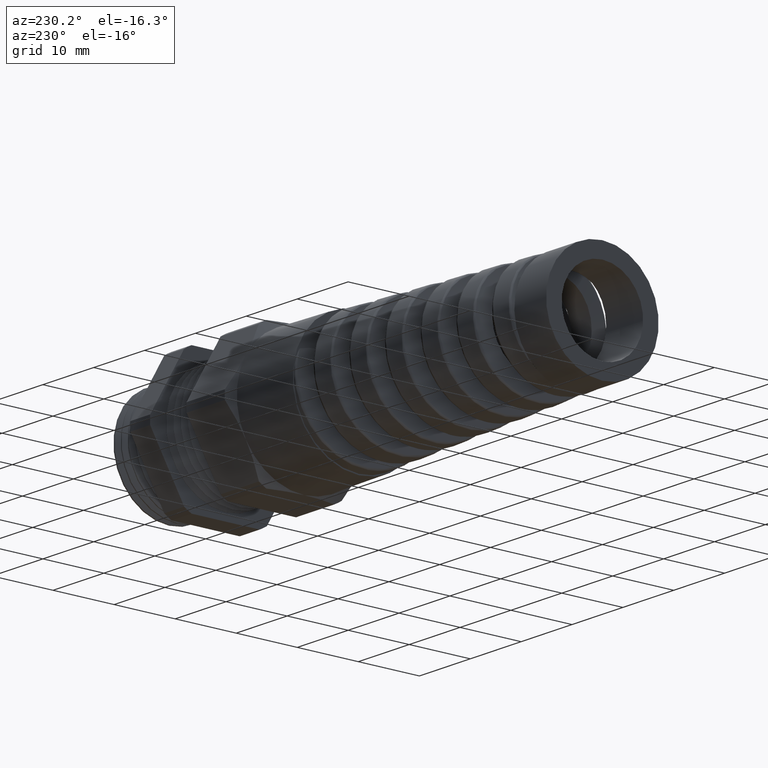
[diagram: clean part render]
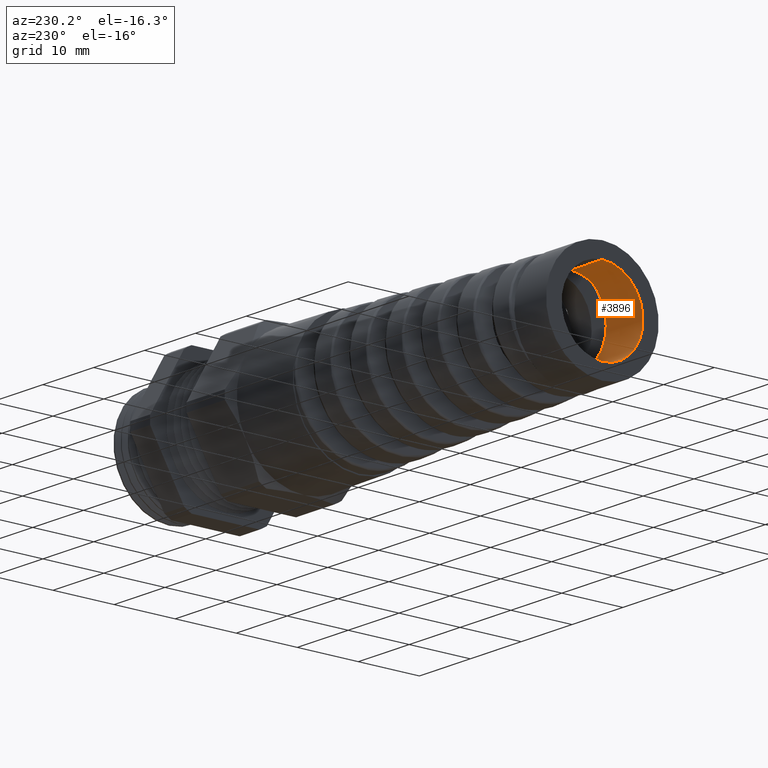
[diagram: same view with one face highlighted and labeled with its STEP entity id]
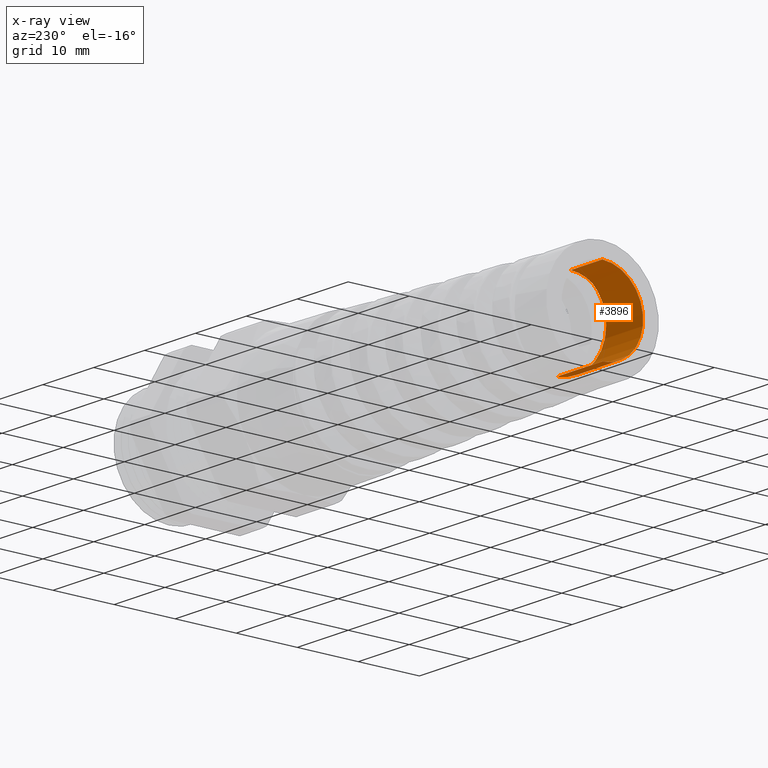
[diagram: x-ray of the same camera — body ghosted, the highlighted face saturated]
A machine part, auxiliary view. The second image highlights one B-rep face of the part: STEP entity #3896.
The next image is the same camera in x-ray: the body ghosted, the highlighted face saturated — about 0% of this face is hidden behind the body in this view.
In plain terms, the highlighted cylindrical surface (partial cylindrical patch) has radius 6.6796 mm, axis along (1, 0, 0).
Its self-contained STEP definition (entity closure, byte-faithful):
#3896 = ADVANCED_FACE ( 'NONE', ( #5457 ), #5452, .F. ) ;
#3897 = EDGE_LOOP ( 'NONE', ( #3898, #3905, #3970, #3975, #3980 ) ) ;
#3898 = ORIENTED_EDGE ( 'NONE', *, *, #3900, .T. ) ;
#3900 = EDGE_CURVE ( 'NONE', #3901, #3903, #5445, .T. ) ;
#3901 = VERTEX_POINT ( 'NONE', #5441 ) ;
#3903 = VERTEX_POINT ( 'NONE', #5440 ) ;
#3905 = ORIENTED_EDGE ( 'NONE', *, *, #3907, .T. ) ;
#3907 = EDGE_CURVE ( 'NONE', #3903, #3909, #5438, .T. ) ;
#3909 = VERTEX_POINT ( 'NONE', #5513 ) ;
#3935 = EDGE_CURVE ( 'NONE', #3901, #3978, #5523, .T. ) ;
#3970 = ORIENTED_EDGE ( 'NONE', *, *, #3973, .F. ) ;
#3973 = EDGE_CURVE ( 'NONE', #3974, #3909, #5641, .T. ) ;
#3974 = VERTEX_POINT ( 'NONE', #5636 ) ;
#3975 = ORIENTED_EDGE ( 'NONE', *, *, #3976, .F. ) ;
#3976 = EDGE_CURVE ( 'NONE', #3978, #3974, #5712, .T. ) ;
#3978 = VERTEX_POINT ( 'NONE', #5714 ) ;
#3980 = ORIENTED_EDGE ( 'NONE', *, *, #3935, .F. ) ;
#5436 = VECTOR ( 'NONE', #5514, 39.37007874015748100 ) ;
#5437 = CARTESIAN_POINT ( 'NONE',  ( 0.4924815508901369000, 3.220513540512179600E-017, 0.2629748873515552800 ) ) ;
#5438 = LINE ( 'NONE', #5437, #5436 ) ;
#5440 = CARTESIAN_POINT ( 'NONE',  ( -3.069999999999999800, 3.220513540512169800E-017, 0.2629748873515537200 ) ) ;
#5441 = CARTESIAN_POINT ( 'NONE',  ( -3.069999999999999800, 0.0000000000000000000, -0.2629748873515537200 ) ) ;
#5442 = DIRECTION ( 'NONE',  ( 0.0000000000000000000, 0.0000000000000000000, 1.000000000000000000 ) ) ;
#5443 = DIRECTION ( 'NONE',  ( -1.000000000000000000, 0.0000000000000000000, 0.0000000000000000000 ) ) ;
#5444 = AXIS2_PLACEMENT_3D ( 'NONE', #5451, #5443, #5442 ) ;
#5445 = CIRCLE ( 'NONE', #5444, 0.2629748873515537200 ) ;
#5447 = DIRECTION ( 'NONE',  ( 0.0000000000000000000, 0.0000000000000000000, -1.000000000000000000 ) ) ;
#5448 = DIRECTION ( 'NONE',  ( 1.000000000000000000, 0.0000000000000000000, 0.0000000000000000000 ) ) ;
#5449 = CARTESIAN_POINT ( 'NONE',  ( 0.4924815508901369000, 0.0000000000000000000, 0.0000000000000000000 ) ) ;
#5450 = AXIS2_PLACEMENT_3D ( 'NONE', #5449, #5448, #5447 ) ;
#5451 = CARTESIAN_POINT ( 'NONE',  ( -3.069999999999999800, 0.0000000000000000000, 0.0000000000000000000 ) ) ;
#5452 = CYLINDRICAL_SURFACE ( 'NONE', #5450, 0.2629748873515552800 ) ;
#5457 = FACE_OUTER_BOUND ( 'NONE', #3897, .T. ) ;
#5513 = CARTESIAN_POINT ( 'NONE',  ( -2.824400000000000200, 3.220513540512169800E-017, 0.2629748873515537200 ) ) ;
#5514 = DIRECTION ( 'NONE',  ( 1.000000000000000000, 0.0000000000000000000, 0.0000000000000000000 ) ) ;
#5520 = DIRECTION ( 'NONE',  ( 1.000000000000000000, 0.0000000000000000000, 0.0000000000000000000 ) ) ;
#5521 = VECTOR ( 'NONE', #5520, 39.37007874015748100 ) ;
#5522 = CARTESIAN_POINT ( 'NONE',  ( 0.4924815508901369000, 0.0000000000000000000, -0.2629748873515552800 ) ) ;
#5523 = LINE ( 'NONE', #5522, #5521 ) ;
#5636 = CARTESIAN_POINT ( 'NONE',  ( -2.824400000000000200, -0.1374920530584009300, 0.2241689691356683900 ) ) ;
#5637 = DIRECTION ( 'NONE',  ( 0.0000000000000000000, 0.0000000000000000000, 1.000000000000000000 ) ) ;
#5638 = DIRECTION ( 'NONE',  ( -1.000000000000000000, 0.0000000000000000000, 0.0000000000000000000 ) ) ;
#5639 = CARTESIAN_POINT ( 'NONE',  ( -2.824400000000000200, 0.0000000000000000000, 0.0000000000000000000 ) ) ;
#5640 = AXIS2_PLACEMENT_3D ( 'NONE', #5639, #5638, #5637 ) ;
#5641 = CIRCLE ( 'NONE', #5640, 0.2629748873515537200 ) ;
#5678 = CARTESIAN_POINT ( 'NONE',  ( -2.824400000000000200, -0.1374920530584009300, 0.2241689691356683900 ) ) ;
#5679 = CARTESIAN_POINT ( 'NONE',  ( -2.822089696417167100, -0.1497047909985277400, 0.2166783944173816800 ) ) ;
#5680 = CARTESIAN_POINT ( 'NONE',  ( -2.819775202997216300, -0.1613180804830380600, 0.2081679576898438100 ) ) ;
#5681 = CARTESIAN_POINT ( 'NONE',  ( -2.815203843638260900, -0.1827953653087309700, 0.1895871201351508600 ) ) ;
#5682 = CARTESIAN_POINT ( 'NONE',  ( -2.812939023507230500, -0.1926981783336656800, 0.1795085974050096600 ) ) ;
#5683 = CARTESIAN_POINT ( 'NONE',  ( -2.808389727583794600, -0.2108438251150436000, 0.1577998919083407100 ) ) ;
#5684 = CARTESIAN_POINT ( 'NONE',  ( -2.806084535048350800, -0.2191486654802313500, 0.1460551074298722700 ) ) ;
#5685 = CARTESIAN_POINT ( 'NONE',  ( -2.801505068138587400, -0.2336277664838753700, 0.1215577998973067500 ) ) ;
#5686 = CARTESIAN_POINT ( 'NONE',  ( -2.799235128430258300, -0.2398093385065509500, 0.1088441324153793500 ) ) ;
#5687 = CARTESIAN_POINT ( 'NONE',  ( -2.794677618535657900, -0.2500942149638841800, 0.08251331794204314100 ) ) ;
#5688 = CARTESIAN_POINT ( 'NONE',  ( -2.792373243501963500, -0.2542179685664155400, 0.06879236051002257700 ) ) ;
#5689 = CARTESIAN_POINT ( 'NONE',  ( -2.787779168042388500, -0.2601663651768689700, 0.04089776078506036200 ) ) ;
#5690 = CARTESIAN_POINT ( 'NONE',  ( -2.785510901361947200, -0.2619802600318755800, 0.02686491247681419400 ) ) ;
#5691 = CARTESIAN_POINT ( 'NONE',  ( -2.780967360663023900, -0.2633506002883329600, -0.001357017513059034400 ) ) ;
#5692 = CARTESIAN_POINT ( 'NONE',  ( -2.778684415026608800, -0.2629010225382577600, -0.01559846366725568100 ) ) ;
#5693 = CARTESIAN_POINT ( 'NONE',  ( -2.774083702806040100, -0.2596596710494361000, -0.04401266807339548900 ) ) ;
#5694 = CARTESIAN_POINT ( 'NONE',  ( -2.771810328796270500, -0.2569082526424909500, -0.05790875244285052800 ) ) ;
#5695 = CARTESIAN_POINT ( 'NONE',  ( -2.767257610645608600, -0.2492279690796905500, -0.08509226353622362200 ) ) ;
#5696 = CARTESIAN_POINT ( 'NONE',  ( -2.764978521544810600, -0.2442991749394714500, -0.09837975294811007700 ) ) ;
#5697 = CARTESIAN_POINT ( 'NONE',  ( -2.760364287308369600, -0.2321783068482853900, -0.1243137019612122100 ) ) ;
#5698 = CARTESIAN_POINT ( 'NONE',  ( -2.758084927883714100, -0.2251247478012355600, -0.1366535088739100900 ) ) ;
#5699 = CARTESIAN_POINT ( 'NONE',  ( -2.753541044052025400, -0.2091906337795521300, -0.1599831625485350600 ) ) ;
#5700 = CARTESIAN_POINT ( 'NONE',  ( -2.751273154736438200, -0.2002987075283325600, -0.1709970186724432700 ) ) ;
#5701 = CARTESIAN_POINT ( 'NONE',  ( -2.746681674728247600, -0.1806126646288071500, -0.1916732062862895000 ) ) ;
#5702 = CARTESIAN_POINT ( 'NONE',  ( -2.744387503479933400, -0.1699359272140168200, -0.2011896180704495500 ) ) ;
#5703 = CARTESIAN_POINT ( 'NONE',  ( -2.739834234124634000, -0.1473974133236372300, -0.2182418024186059700 ) ) ;
#5704 = CARTESIAN_POINT ( 'NONE',  ( -2.737560929527524100, -0.1354742452705488300, -0.2258434488065332300 ) ) ;
#5705 = CARTESIAN_POINT ( 'NONE',  ( -2.732969006553620100, -0.1102971093368431700, -0.2391507519795630600 ) ) ;
#5706 = CARTESIAN_POINT ( 'NONE',  ( -2.730663081252573000, -0.09708993583023048400, -0.2448046741171682500 ) ) ;
#5707 = CARTESIAN_POINT ( 'NONE',  ( -2.726112826489262900, -0.07027643135997449500, -0.2538050576809650600 ) ) ;
#5708 = CARTESIAN_POINT ( 'NONE',  ( -2.723848456687910900, -0.05656153530608292600, -0.2572129460910360700 ) ) ;
#5709 = CARTESIAN_POINT ( 'NONE',  ( -2.719278641055261800, -0.02851642067552636500, -0.2618100851091643100 ) ) ;
#5710 = CARTESIAN_POINT ( 'NONE',  ( -2.716968568270345100, -0.01415623473254666100, -0.2629748873515641600 ) ) ;
#5711 = CARTESIAN_POINT ( 'NONE',  ( -2.714688883260012900, 1.642694346690242300E-013, -0.2629748873515551600 ) ) ;
#5712 = B_SPLINE_CURVE_WITH_KNOTS ( 'NONE', 3,
 ( #5711, #5710, #5709, #5708, #5707, #5706, #5705, #5704, #5703, #5702, #5701, #5700, #5699, #5698, #5697, #5696, #5695, #5694, #5693, #5692, #5691, #5690, #5689, #5688, #5687, #5686, #5685, #5684, #5683, #5682, #5681, #5680, #5679, #5678 ),
 .UNSPECIFIED., .F., .F.,
 ( 4, 2, 2, 2, 2, 2, 2, 2, 2, 2, 2, 2, 2, 2, 2, 2, 4 ),
 ( 0.2731448862676169000, 0.2742349972786402600, 0.2753251082896636100, 0.2764152193006869700, 0.2775053303117103200, 0.2785954413227336700, 0.2796855523337570300, 0.2807756633447803800, 0.2818657743558037300, 0.2829558853668270300, 0.2840459963778503800, 0.2851361073888737400, 0.2862262183998970900, 0.2873163294109204500, 0.2884064404219438000, 0.2894965514329671500, 0.2905866624439905100 ),
 .UNSPECIFIED. ) ;
#5714 = CARTESIAN_POINT ( 'NONE',  ( -2.714688883260012900, 1.642694346690242300E-013, -0.2629748873515551600 ) ) ;